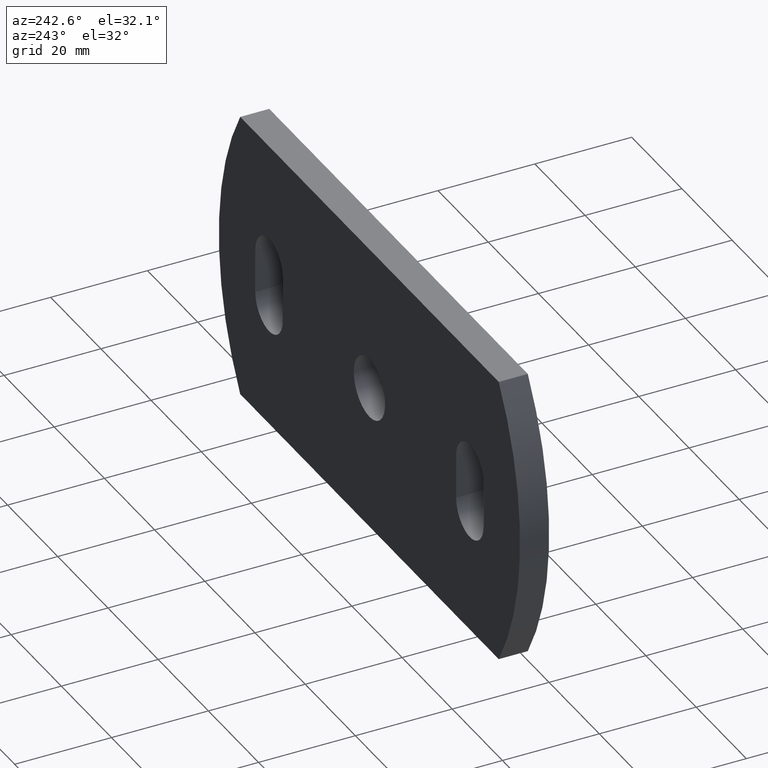
[diagram: clean part render]
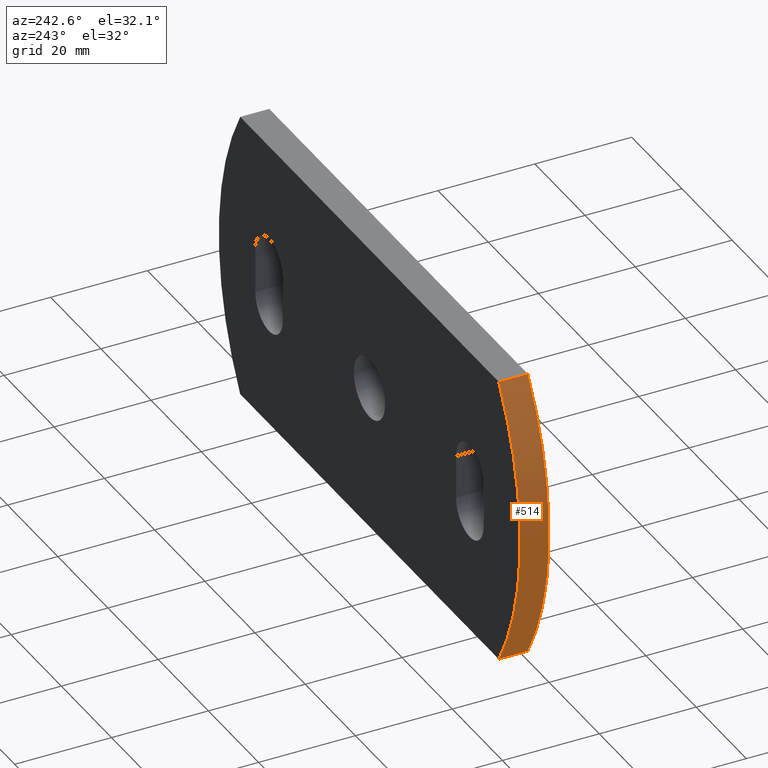
[diagram: same view with one face highlighted and labeled with its STEP entity id]
A machine part, auxiliary view. The second image highlights one B-rep face of the part: STEP entity #514.
In plain terms, the highlighted cylindrical surface (partial cylindrical patch) has radius 57.1912 mm, axis along (-0, -1, -0).
Its self-contained STEP definition (entity closure, byte-faithful):
#291 = DIRECTION ( 'NONE',  ( 0.0000000000000000000, 1.000000000000000000, 0.0000000000000000000 ) ) ;
#455 = CARTESIAN_POINT ( 'NONE',  ( -2.808823529411953700, 6.000000000000000000, 0.0000000000000000000 ) ) ;
#514 = ADVANCED_FACE ( 'NONE', ( #583 ), #5976, .T. ) ;
#583 = FACE_OUTER_BOUND ( 'NONE', #8231, .T. ) ;
#796 = AXIS2_PLACEMENT_3D ( 'NONE', #9089, #291, #8276 ) ;
#811 = CIRCLE ( 'NONE', #796, 57.19117647058804000 ) ;
#1186 = VERTEX_POINT ( 'NONE', #3358 ) ;
#1944 = CARTESIAN_POINT ( 'NONE',  ( -2.808823529411953700, 0.0000000000000000000, 0.0000000000000000000 ) ) ;
#2101 = EDGE_CURVE ( 'NONE', #9381, #3112, #811, .T. ) ;
#2405 = ORIENTED_EDGE ( 'NONE', *, *, #2629, .T. ) ;
#2629 = EDGE_CURVE ( 'NONE', #3299, #1186, #4751, .T. ) ;
#2873 = CARTESIAN_POINT ( 'NONE',  ( -51.49999999999997200, 6.000000000000000000, 29.99999999999998200 ) ) ;
#2892 = DIRECTION ( 'NONE',  ( -0.0000000000000000000, -1.000000000000000000, -0.0000000000000000000 ) ) ;
#3112 = VERTEX_POINT ( 'NONE', #2873 ) ;
#3297 = DIRECTION ( 'NONE',  ( 0.0000000000000000000, 1.000000000000000000, 0.0000000000000000000 ) ) ;
#3299 = VERTEX_POINT ( 'NONE', #3943 ) ;
#3356 = VECTOR ( 'NONE', #8710, 1000.000000000000000 ) ;
#3358 = CARTESIAN_POINT ( 'NONE',  ( -51.49999999999997200, 0.0000000000000000000, 29.99999999999998200 ) ) ;
#3621 = CARTESIAN_POINT ( 'NONE',  ( -51.49999999999994300, 6.000000000000000000, -30.00000000000002800 ) ) ;
#3658 = DIRECTION ( 'NONE',  ( 0.0000000000000000000, 0.0000000000000000000, -1.000000000000000000 ) ) ;
#3900 = ORIENTED_EDGE ( 'NONE', *, *, #2101, .F. ) ;
#3943 = CARTESIAN_POINT ( 'NONE',  ( -51.49999999999994300, 0.0000000000000000000, -30.00000000000002800 ) ) ;
#4188 = ORIENTED_EDGE ( 'NONE', *, *, #5145, .T. ) ;
#4237 = CARTESIAN_POINT ( 'NONE',  ( -51.49999999999997200, 6.000000000000000000, 29.99999999999998200 ) ) ;
#4563 = DIRECTION ( 'NONE',  ( -0.0000000000000000000, -1.000000000000000000, -0.0000000000000000000 ) ) ;
#4751 = CIRCLE ( 'NONE', #8460, 57.19117647058804000 ) ;
#5145 = EDGE_CURVE ( 'NONE', #9381, #3299, #8899, .T. ) ;
#5235 = CARTESIAN_POINT ( 'NONE',  ( -51.49999999999994300, 6.000000000000000000, -30.00000000000002800 ) ) ;
#5976 = CYLINDRICAL_SURFACE ( 'NONE', #6290, 57.19117647058804000 ) ;
#6056 = ORIENTED_EDGE ( 'NONE', *, *, #8798, .F. ) ;
#6207 = LINE ( 'NONE', #4237, #3356 ) ;
#6290 = AXIS2_PLACEMENT_3D ( 'NONE', #455, #2892, #3658 ) ;
#8231 = EDGE_LOOP ( 'NONE', ( #2405, #6056, #3900, #4188 ) ) ;
#8276 = DIRECTION ( 'NONE',  ( 0.0000000000000000000, 0.0000000000000000000, 1.000000000000000000 ) ) ;
#8413 = DIRECTION ( 'NONE',  ( 0.0000000000000000000, 0.0000000000000000000, 1.000000000000000000 ) ) ;
#8460 = AXIS2_PLACEMENT_3D ( 'NONE', #1944, #3297, #8413 ) ;
#8710 = DIRECTION ( 'NONE',  ( -0.0000000000000000000, -1.000000000000000000, -0.0000000000000000000 ) ) ;
#8798 = EDGE_CURVE ( 'NONE', #3112, #1186, #6207, .T. ) ;
#8899 = LINE ( 'NONE', #3621, #9232 ) ;
#9089 = CARTESIAN_POINT ( 'NONE',  ( -2.808823529411953700, 6.000000000000000000, 0.0000000000000000000 ) ) ;
#9232 = VECTOR ( 'NONE', #4563, 1000.000000000000000 ) ;
#9381 = VERTEX_POINT ( 'NONE', #5235 ) ;